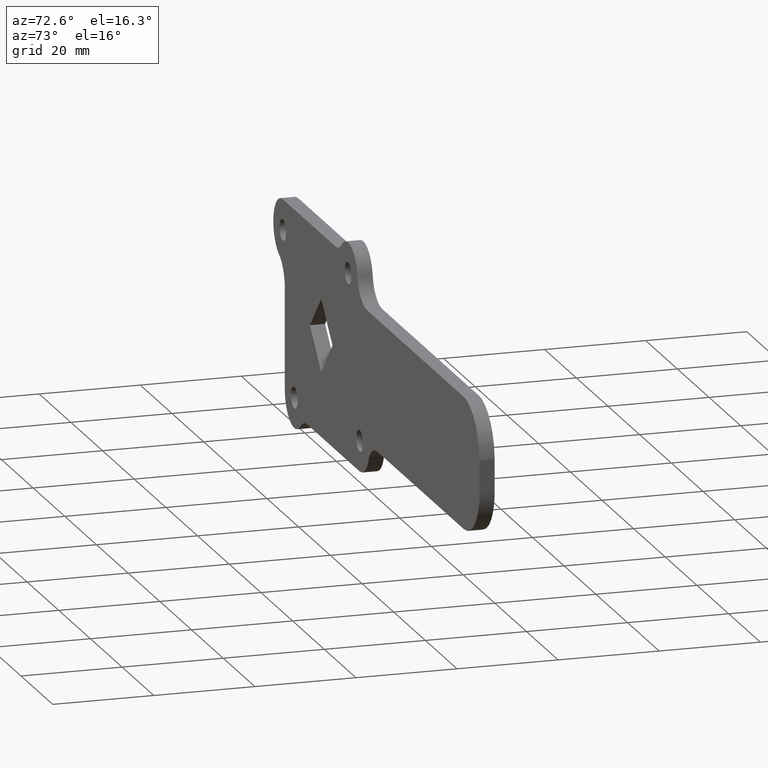
[diagram: clean part render]
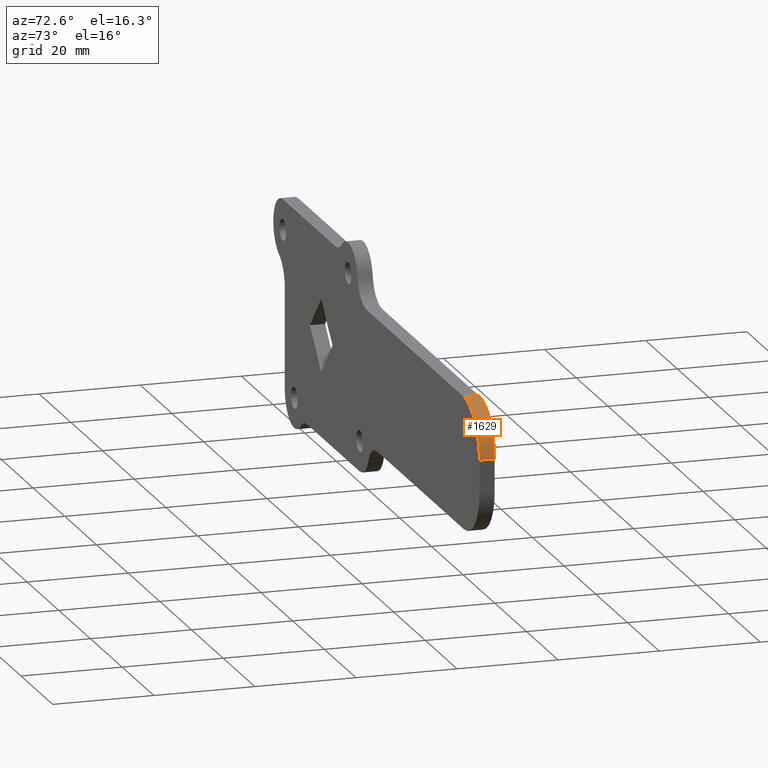
[diagram: same view with one face highlighted and labeled with its STEP entity id]
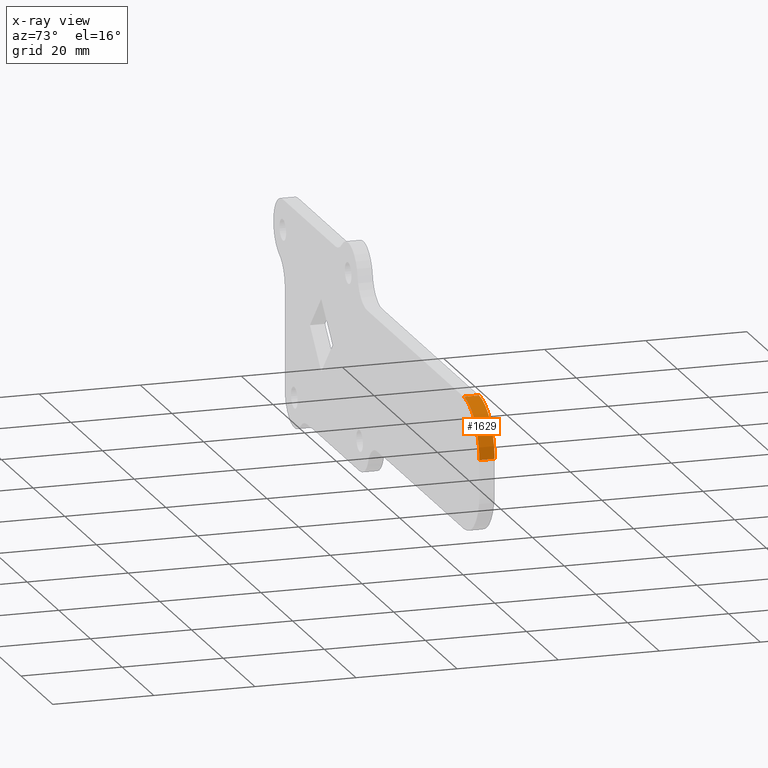
[diagram: x-ray of the same camera — body ghosted, the highlighted face saturated]
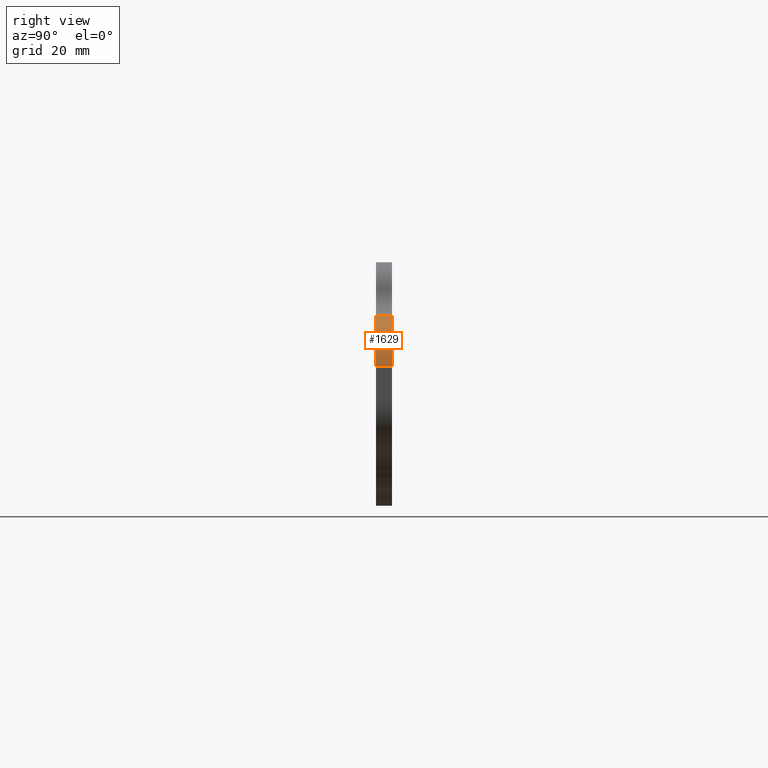
[diagram: same view with one face highlighted and labeled with its STEP entity id]
A machine part, auxiliary view. The second image highlights one B-rep face of the part: STEP entity #1629.
The next image is the same camera in x-ray: the body ghosted, the highlighted face saturated — about 0% of this face is hidden behind the body in this view.
A second angle (right view) of the same face is appended — the face is thin or edge-on in the first view.
In plain terms, the highlighted face is a freeform B-spline surface patch.
Its self-contained STEP definition (entity closure, byte-faithful):
#926=CARTESIAN_POINT('',(89.949985999999996,0.0,13.0));
#927=VERTEX_POINT('',#926);
#933=CARTESIAN_POINT('',(99.944428901375602,0.0,3.333333303380950));
#934=VERTEX_POINT('',#933);
#935=CARTESIAN_POINT('',(99.944428901375602,0.0,3.333333303380947));
#936=CARTESIAN_POINT('',(99.622027545495811,0.0,13.000000000000002));
#937=CARTESIAN_POINT('',(89.949985999999996,0.0,13.0));
#945=(BOUNDED_CURVE()B_SPLINE_CURVE(2,(#935,#936,#937),.UNSPECIFIED.,.F.,.U.)CURVE()GEOMETRIC_REPRESENTATION_ITEM()QUASI_UNIFORM_CURVE()RATIONAL_B_SPLINE_CURVE((1.0,0.718795287386504,1.0))REPRESENTATION_ITEM(''));
#946=EDGE_CURVE('',#934,#927,#945,.T.);
#1114=CARTESIAN_POINT('',(99.944428901375602,-3.0,3.333333303380950));
#1115=VERTEX_POINT('',#1114);
#1129=CARTESIAN_POINT('',(89.949985999999996,-3.0,13.0));
#1130=VERTEX_POINT('',#1129);
#1131=CARTESIAN_POINT('',(99.944428901375602,-3.0,3.333333303380947));
#1132=CARTESIAN_POINT('',(99.622027545495811,-3.000000000000000,13.000000000000002));
#1133=CARTESIAN_POINT('',(89.949985999999996,-3.0,13.0));
#1141=(BOUNDED_CURVE()B_SPLINE_CURVE(2,(#1131,#1132,#1133),.UNSPECIFIED.,.F.,.U.)CURVE()GEOMETRIC_REPRESENTATION_ITEM()QUASI_UNIFORM_CURVE()RATIONAL_B_SPLINE_CURVE((1.0,0.718795287386504,1.0))REPRESENTATION_ITEM(''));
#1142=EDGE_CURVE('',#1115,#1130,#1141,.T.);
#1597=CARTESIAN_POINT('',(89.949985999999996,-3.0,13.0));
#1598=CARTESIAN_POINT('',(89.949985999999996,0.0,13.0));
#1599=QUASI_UNIFORM_CURVE('',1,(#1597,#1598),.UNSPECIFIED.,.F.,.U.);
#1600=EDGE_CURVE('',#1130,#927,#1599,.T.);
#1605=CARTESIAN_POINT('',(99.949729704061966,-3.075000000000001,3.071595063187753));
#1606=CARTESIAN_POINT('',(99.949729704061966,0.076875000000000,3.071595063187753));
#1607=CARTESIAN_POINT('',(99.874284249406486,-3.075000000000001,13.609126236431690));
#1608=CARTESIAN_POINT('',(99.874284249406486,0.076875000000000,13.609126236431690));
#1609=CARTESIAN_POINT('',(89.355142906421662,-3.075000000000001,12.982292406758191));
#1610=CARTESIAN_POINT('',(89.355142906421662,0.076875000000000,12.982292406758191));
#1618=(BOUNDED_SURFACE()B_SPLINE_SURFACE(1,2,((#1605,#1607,#1609),(#1606,#1608,#1610)),.UNSPECIFIED.,.F.,.F.,.U.)B_SPLINE_SURFACE_WITH_KNOTS((2,2),(3,3),(0.0,3.151875000000001),(0.0,17.185356238673410),.UNSPECIFIED.)GEOMETRIC_REPRESENTATION_ITEM()RATIONAL_B_SPLINE_SURFACE(((1.0,0.688354575693754,1.0),(1.0,0.688354575693754,1.0)))REPRESENTATION_ITEM('')SURFACE());
#1619=ORIENTED_EDGE('',*,*,#946,.T.);
#1620=ORIENTED_EDGE('',*,*,#1600,.F.);
#1621=ORIENTED_EDGE('',*,*,#1142,.F.);
#1622=CARTESIAN_POINT('',(99.944428901375602,-3.0,3.333333303380950));
#1623=CARTESIAN_POINT('',(99.944428901375602,0.0,3.333333303380950));
#1624=QUASI_UNIFORM_CURVE('',1,(#1622,#1623),.UNSPECIFIED.,.F.,.U.);
#1625=EDGE_CURVE('',#1115,#934,#1624,.T.);
#1626=ORIENTED_EDGE('',*,*,#1625,.T.);
#1627=EDGE_LOOP('',(#1619,#1620,#1621,#1626));
#1628=FACE_OUTER_BOUND('',#1627,.T.);
#1629=ADVANCED_FACE('',(#1628),#1618,.T.);